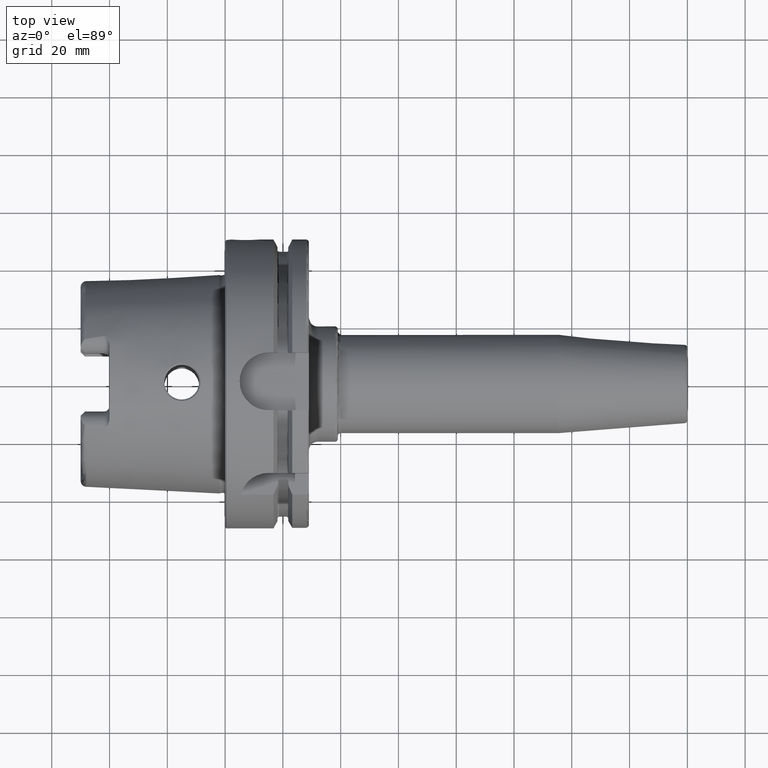
[diagram: clean part render]
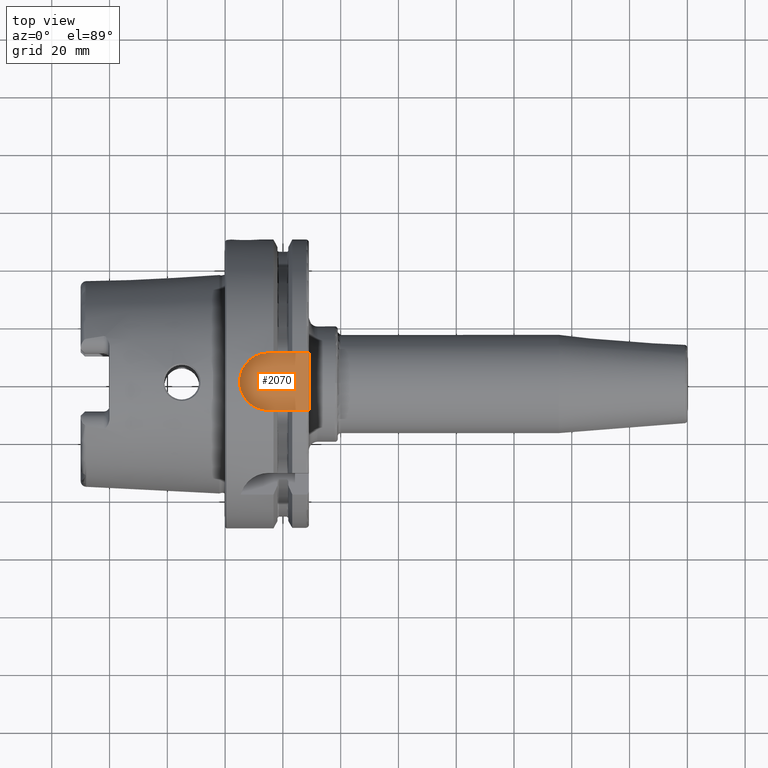
[diagram: same view with one face highlighted and labeled with its STEP entity id]
A machine part, top view. The second image highlights one B-rep face of the part: STEP entity #2070.
In plain terms, the highlighted planar face has unit normal (0, 0, 1).
Its self-contained STEP definition (entity closure, byte-faithful):
#125=PLANE('',#2308);
#286=FACE_OUTER_BOUND('',#417,.T.);
#417=EDGE_LOOP('',(#1766,#1767,#1768,#1769));
#480=LINE('',#3120,#586);
#551=LINE('',#4360,#657);
#554=LINE('',#4367,#660);
#586=VECTOR('',#2494,10.);
#657=VECTOR('',#2819,10.);
#660=VECTOR('',#2828,10.);
#765=CIRCLE('',#2306,10.);
#842=VERTEX_POINT('',#3117);
#843=VERTEX_POINT('',#3119);
#989=VERTEX_POINT('',#4359);
#990=VERTEX_POINT('',#4363);
#1059=EDGE_CURVE('',#842,#843,#480,.T.);
#1264=EDGE_CURVE('',#989,#843,#551,.T.);
#1266=EDGE_CURVE('',#990,#989,#765,.T.);
#1268=EDGE_CURVE('',#842,#990,#554,.T.);
#1766=ORIENTED_EDGE('',*,*,#1268,.T.);
#1767=ORIENTED_EDGE('',*,*,#1266,.T.);
#1768=ORIENTED_EDGE('',*,*,#1264,.T.);
#1769=ORIENTED_EDGE('',*,*,#1059,.F.);
#2070=ADVANCED_FACE('',(#286),#125,.T.);
#2306=AXIS2_PLACEMENT_3D('',#4364,#2823,#2824);
#2308=AXIS2_PLACEMENT_3D('',#4368,#2829,#2830);
#2494=DIRECTION('',(0.,-1.,0.));
#2819=DIRECTION('',(1.,7.93016446160826E-17,0.));
#2823=DIRECTION('center_axis',(0.,0.,1.));
#2824=DIRECTION('ref_axis',(0.,1.,0.));
#2828=DIRECTION('',(-1.,0.,0.));
#2829=DIRECTION('center_axis',(0.,0.,1.));
#2830=DIRECTION('ref_axis',(1.,0.,0.));
#3117=CARTESIAN_POINT('',(29.,10.,44.));
#3119=CARTESIAN_POINT('',(29.,-10.,44.));
#3120=CARTESIAN_POINT('',(29.,0.,44.));
#4359=CARTESIAN_POINT('',(15.,-10.,44.));
#4360=CARTESIAN_POINT('',(15.,-10.,44.));
#4363=CARTESIAN_POINT('',(15.,10.,44.));
#4364=CARTESIAN_POINT('Origin',(15.,0.,44.));
#4367=CARTESIAN_POINT('',(29.,10.,44.));
#4368=CARTESIAN_POINT('Origin',(17.,0.,44.));